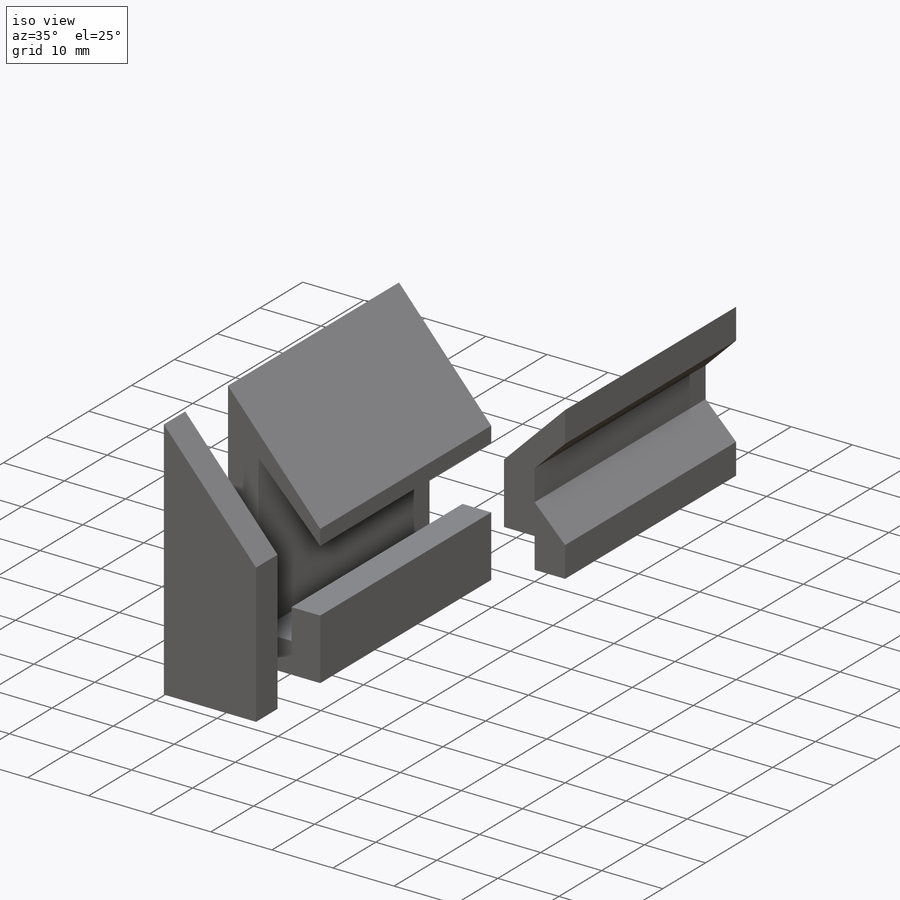
[diagram: iso view]
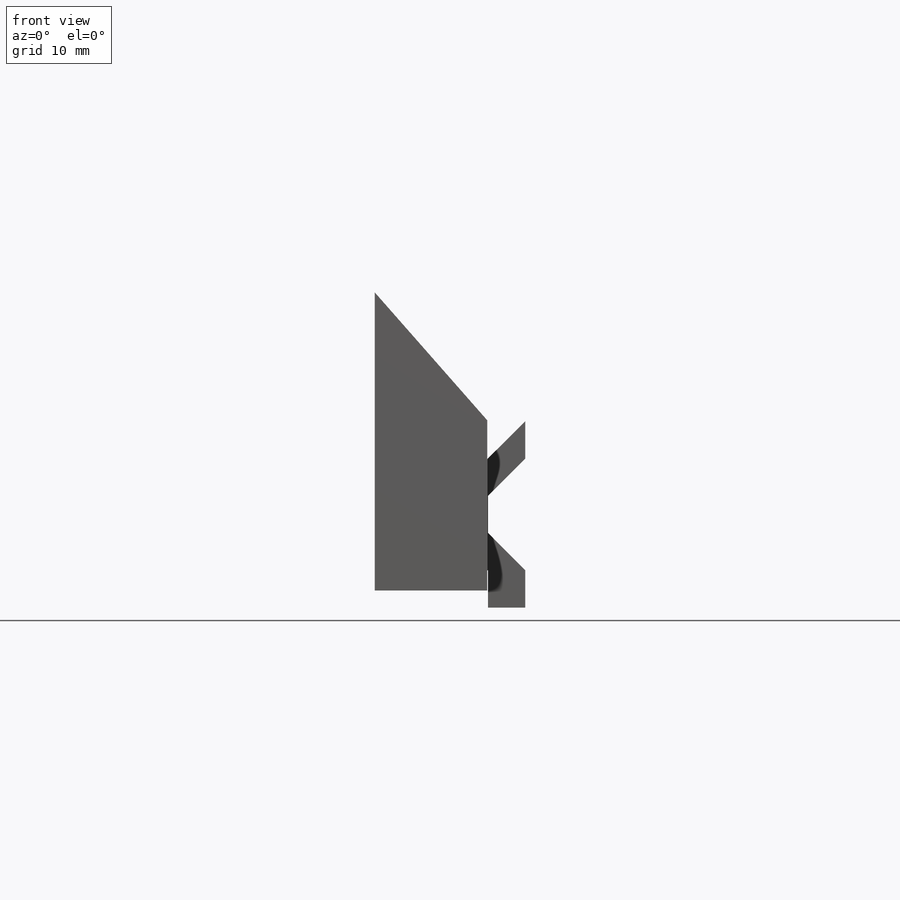
[diagram: front view]
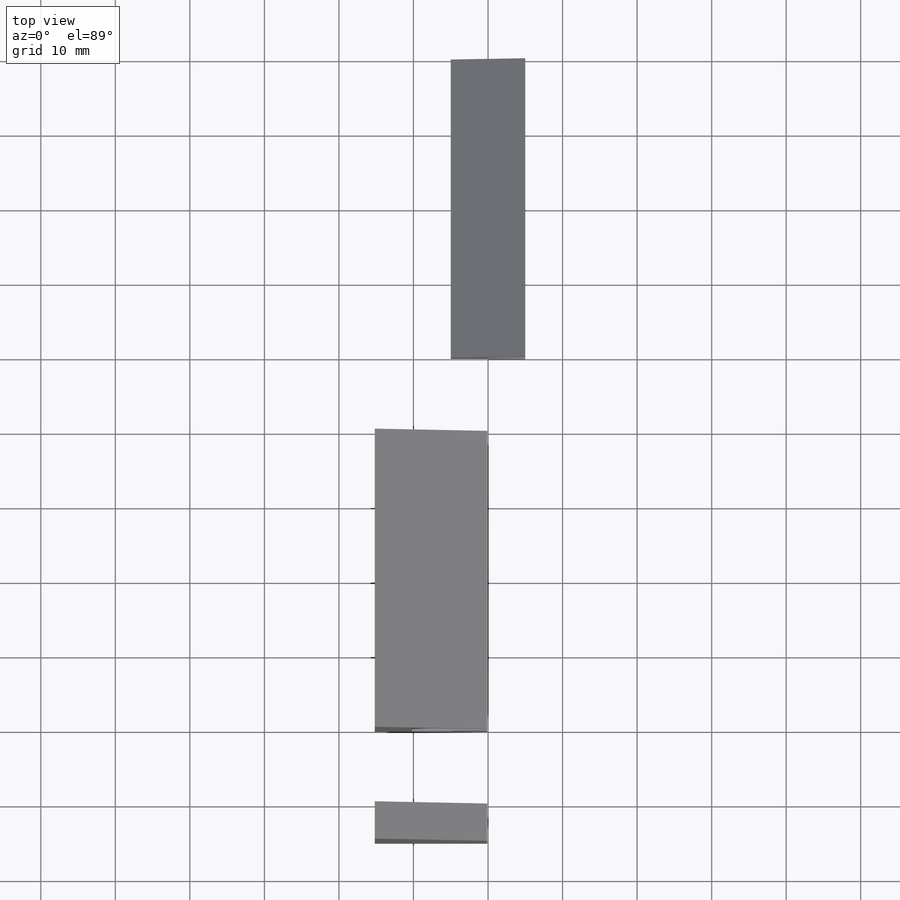
[diagram: top view]
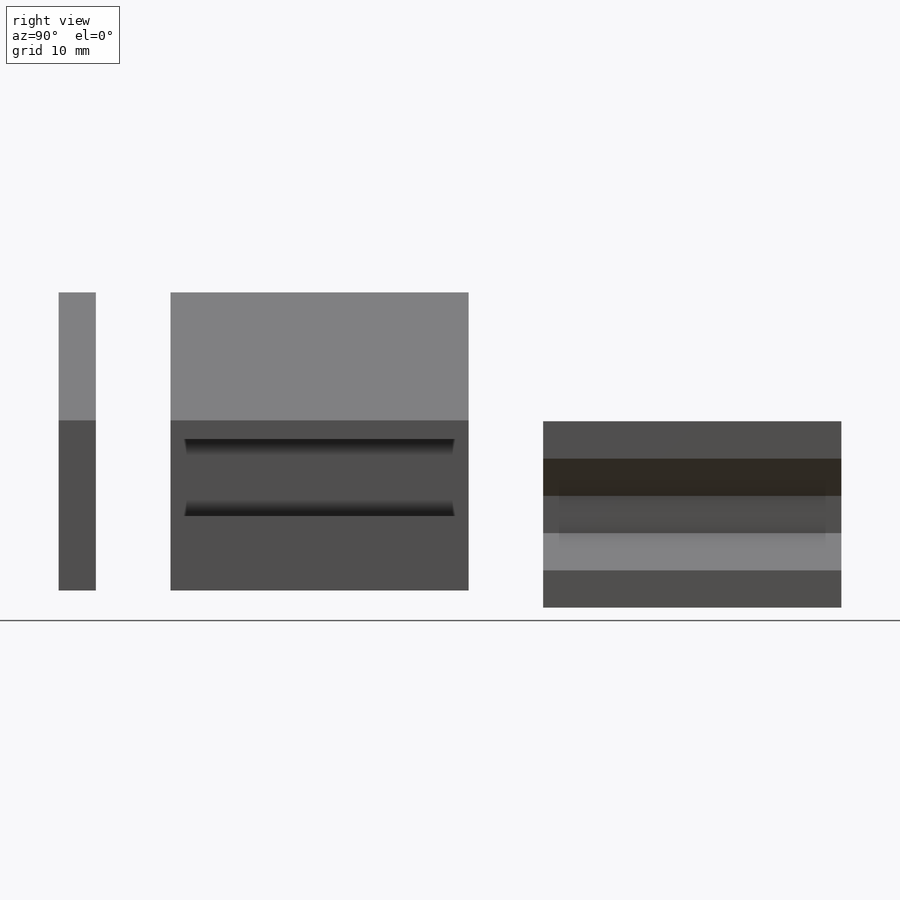
[diagram: right view]
SOLIDWORKS PART (.sldprt)
format: sldprt  version: not decoded by parser v0  size: 200,704 bytes
history: native  units: mm
features: sketch x3, extrude x3, plane x2, material x1 (+13 scaffold rows collapsed)
feature tree (22):
  scaffold x13  (default folders/planes/origin — collapsed)
  material  "Material <not specified>"
  sketch  "Sketch2"  dims[c1.D2=0.2mm c1.D3=4.8mm c1.D4=5.4mm c1.D5=~25.682843mm c1.D6=40.0mm c1.D1=2.5mm c1.D7=5.0mm c1.D8=15.4mm c1.D9=0.1mm c2.D8=15.1mm c2.D10=5.0mm c2.D11=0.1mm c2.D12=~0.102773mm c2.D13=~2.631934mm c2.D14=0.1mm c2.D2=0.1mm c2.D3=0.2mm c2.D9=4.7mm c3.D3=0.1mm c3.D1=5.0mm]
  extrude  "Boss-Extrude1"  Depth=40mm
  plane  "Plane1"  Offset=10mm
  sketch  "Sketch3"  dims[D1=0.0mm]
  extrude  "Boss-Extrude2"  Depth=5mm
  plane  "Plane2"  Offset=10mm
  sketch  "Sketch4"
  extrude  "Boss-Extrude3"  Depth=40mm
decode coverage: 5 of 6 modeling features carry decoded parameters
note: ~ marks probable driven/reference dimensions
note: suppression state not decoded; provenance and decode notes live in map.json
